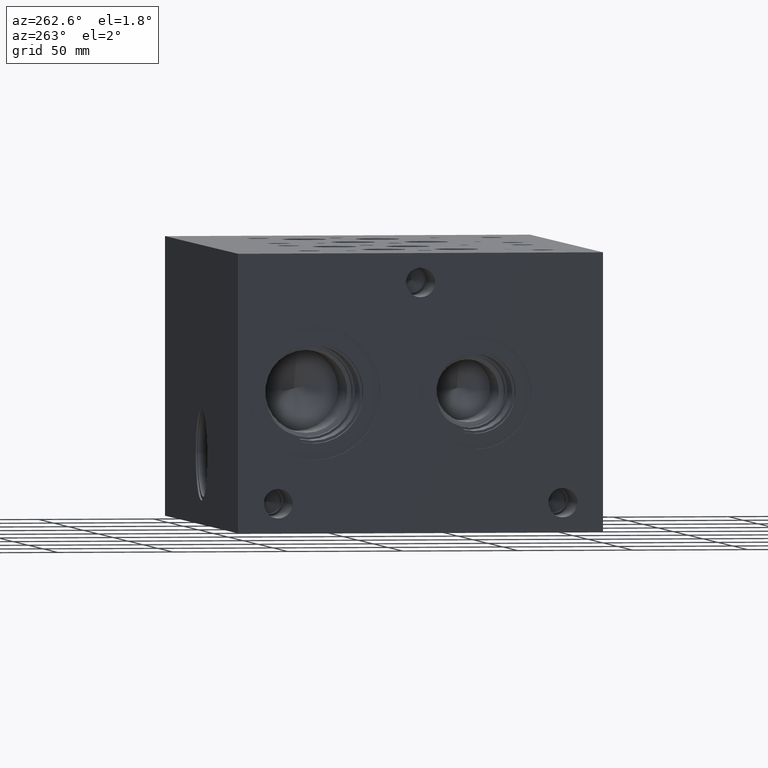
[diagram: clean part render]
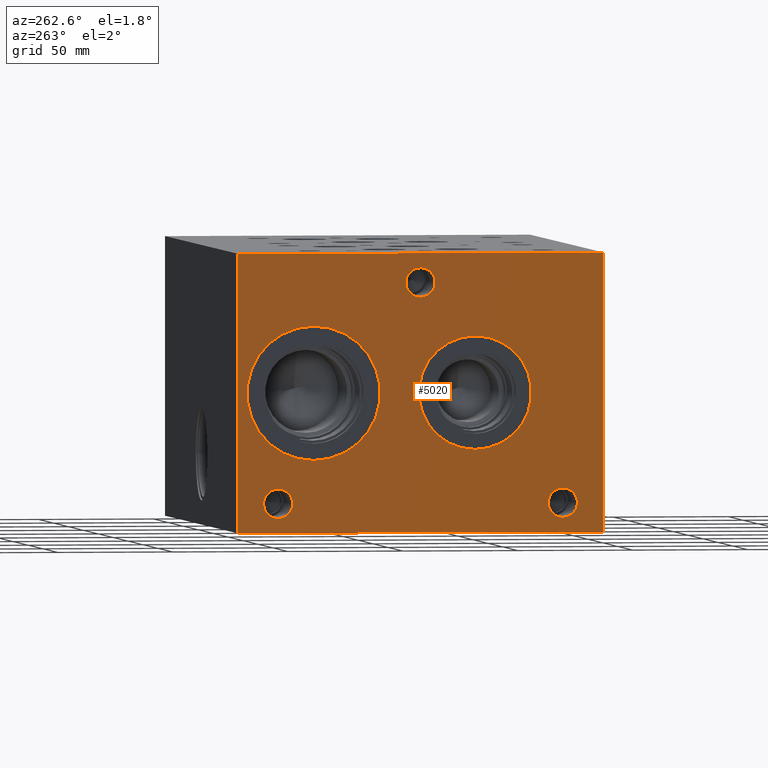
[diagram: same view with one face highlighted and labeled with its STEP entity id]
A machine part, auxiliary view. The second image highlights one B-rep face of the part: STEP entity #5020.
In plain terms, the highlighted planar face has unit normal (1, 0, 0).
Its self-contained STEP definition (entity closure, byte-faithful):
#2405=CARTESIAN_POINT('',(0.0,0.0,4.749999999999999));
#2406=VERTEX_POINT('',#2405);
#2407=CARTESIAN_POINT('',(0.0,6.249999999999999,4.749999999999999));
#2408=VERTEX_POINT('',#2407);
#2409=CARTESIAN_POINT('',(0.0,0.0,4.749999999999999));
#2410=DIRECTION('',(0.0,1.0,0.0));
#2411=VECTOR('',#2410,6.249999999999999);
#2412=LINE('',#2409,#2411);
#2413=EDGE_CURVE('',#2406,#2408,#2412,.T.);
#4141=CARTESIAN_POINT('',(0.0,0.0,0.0));
#4142=VERTEX_POINT('',#4141);
#4143=CARTESIAN_POINT('',(0.0,0.0,0.0));
#4144=DIRECTION('',(0.0,0.0,1.0));
#4145=VECTOR('',#4144,4.749999999999999);
#4146=LINE('',#4143,#4145);
#4147=EDGE_CURVE('',#4142,#2406,#4146,.T.);
#4192=CARTESIAN_POINT('',(0.0,2.188000000000000,3.339000000000000));
#4193=VERTEX_POINT('',#4192);
#4194=CARTESIAN_POINT('',(0.0,2.188000000000000,2.375000000000000));
#4195=DIRECTION('',(1.0,0.0,0.0));
#4196=DIRECTION('',(0.0,-1.0,0.0));
#4197=AXIS2_PLACEMENT_3D('',#4194,#4195,#4196);
#4198=CIRCLE('',#4197,0.964000000000000);
#4199=EDGE_CURVE('',#4193,#4193,#4198,.T.);
#4423=CARTESIAN_POINT('',(0.0,4.954000000000000,3.516000000000000));
#4424=VERTEX_POINT('',#4423);
#4425=CARTESIAN_POINT('',(0.0,4.954000000000000,2.375000000000000));
#4426=DIRECTION('',(1.0,0.0,0.0));
#4427=DIRECTION('',(0.0,-1.0,0.0));
#4428=AXIS2_PLACEMENT_3D('',#4425,#4426,#4427);
#4429=CIRCLE('',#4428,1.141000000000000);
#4430=EDGE_CURVE('',#4424,#4424,#4429,.T.);
#4654=CARTESIAN_POINT('',(0.0,3.125000000000000,4.499999999999999));
#4655=VERTEX_POINT('',#4654);
#4656=CARTESIAN_POINT('',(0.0,3.125000000000000,4.249999999999999));
#4657=DIRECTION('',(1.0,0.0,0.0));
#4658=DIRECTION('',(0.0,-1.0,0.0));
#4659=AXIS2_PLACEMENT_3D('',#4656,#4657,#4658);
#4660=CIRCLE('',#4659,0.250000000000000);
#4661=EDGE_CURVE('',#4655,#4655,#4660,.T.);
#4765=CARTESIAN_POINT('',(0.0,0.688000000000000,0.750000000000000));
#4766=VERTEX_POINT('',#4765);
#4767=CARTESIAN_POINT('',(0.0,0.688000000000000,0.500000000000000));
#4768=DIRECTION('',(1.0,0.0,0.0));
#4769=DIRECTION('',(0.0,-1.0,0.0));
#4770=AXIS2_PLACEMENT_3D('',#4767,#4768,#4769);
#4771=CIRCLE('',#4770,0.250000000000000);
#4772=EDGE_CURVE('',#4766,#4766,#4771,.T.);
#4876=CARTESIAN_POINT('',(0.0,5.561999999999999,0.750000000000000));
#4877=VERTEX_POINT('',#4876);
#4878=CARTESIAN_POINT('',(0.0,5.561999999999999,0.500000000000000));
#4879=DIRECTION('',(1.0,0.0,0.0));
#4880=DIRECTION('',(0.0,-1.0,0.0));
#4881=AXIS2_PLACEMENT_3D('',#4878,#4879,#4880);
#4882=CIRCLE('',#4881,0.250000000000000);
#4883=EDGE_CURVE('',#4877,#4877,#4882,.T.);
#4982=CARTESIAN_POINT('',(0.0,0.0,4.749999999999999));
#4983=DIRECTION('',(1.0,0.0,0.0));
#4984=DIRECTION('',(0.0,0.0,-1.0));
#4985=AXIS2_PLACEMENT_3D('',#4982,#4983,#4984);
#4986=PLANE('',#4985);
#4987=ORIENTED_EDGE('',*,*,#2413,.T.);
#4988=CARTESIAN_POINT('',(0.0,6.249999999999999,0.0));
#4989=VERTEX_POINT('',#4988);
#4990=CARTESIAN_POINT('',(0.0,6.249999999999999,0.0));
#4991=DIRECTION('',(0.0,0.0,1.0));
#4992=VECTOR('',#4991,4.749999999999999);
#4993=LINE('',#4990,#4992);
#4994=EDGE_CURVE('',#4989,#2408,#4993,.T.);
#4995=ORIENTED_EDGE('',*,*,#4994,.F.);
#4996=CARTESIAN_POINT('',(0.0,6.249999999999999,0.0));
#4997=DIRECTION('',(0.0,-1.0,0.0));
#4998=VECTOR('',#4997,6.249999999999999);
#4999=LINE('',#4996,#4998);
#5000=EDGE_CURVE('',#4989,#4142,#4999,.T.);
#5001=ORIENTED_EDGE('',*,*,#5000,.T.);
#5002=ORIENTED_EDGE('',*,*,#4147,.T.);
#5003=EDGE_LOOP('',(#4987,#4995,#5001,#5002));
#5004=FACE_OUTER_BOUND('',#5003,.T.);
#5005=ORIENTED_EDGE('',*,*,#4199,.T.);
#5006=EDGE_LOOP('',(#5005));
#5007=FACE_BOUND('',#5006,.T.);
#5008=ORIENTED_EDGE('',*,*,#4430,.T.);
#5009=EDGE_LOOP('',(#5008));
#5010=FACE_BOUND('',#5009,.T.);
#5011=ORIENTED_EDGE('',*,*,#4661,.T.);
#5012=EDGE_LOOP('',(#5011));
#5013=FACE_BOUND('',#5012,.T.);
#5014=ORIENTED_EDGE('',*,*,#4772,.T.);
#5015=EDGE_LOOP('',(#5014));
#5016=FACE_BOUND('',#5015,.T.);
#5017=ORIENTED_EDGE('',*,*,#4883,.T.);
#5018=EDGE_LOOP('',(#5017));
#5019=FACE_BOUND('',#5018,.T.);
#5020=ADVANCED_FACE('',(#5004,#5007,#5010,#5013,#5016,#5019),#4986,.F.);